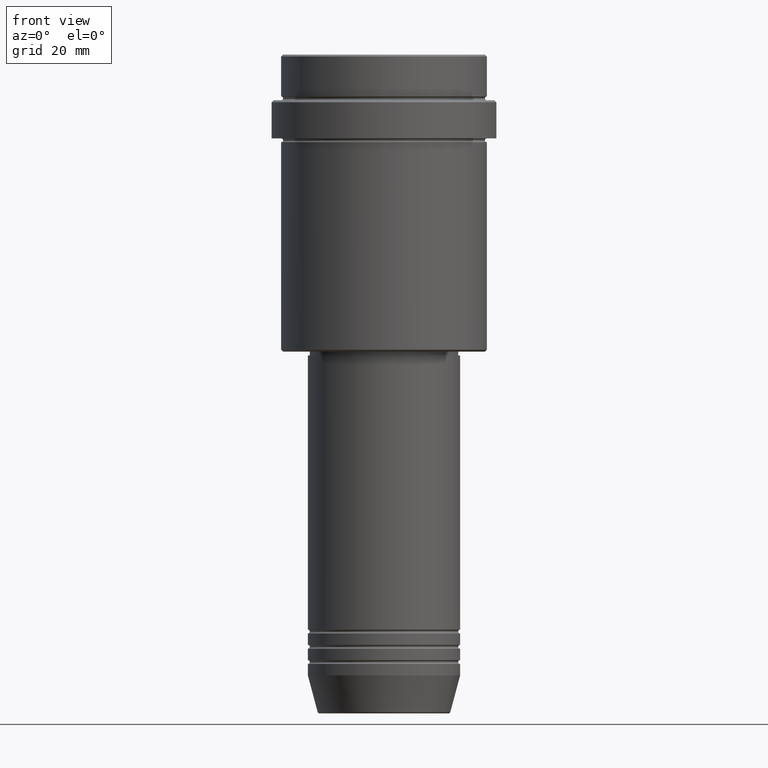
[diagram: clean part render]
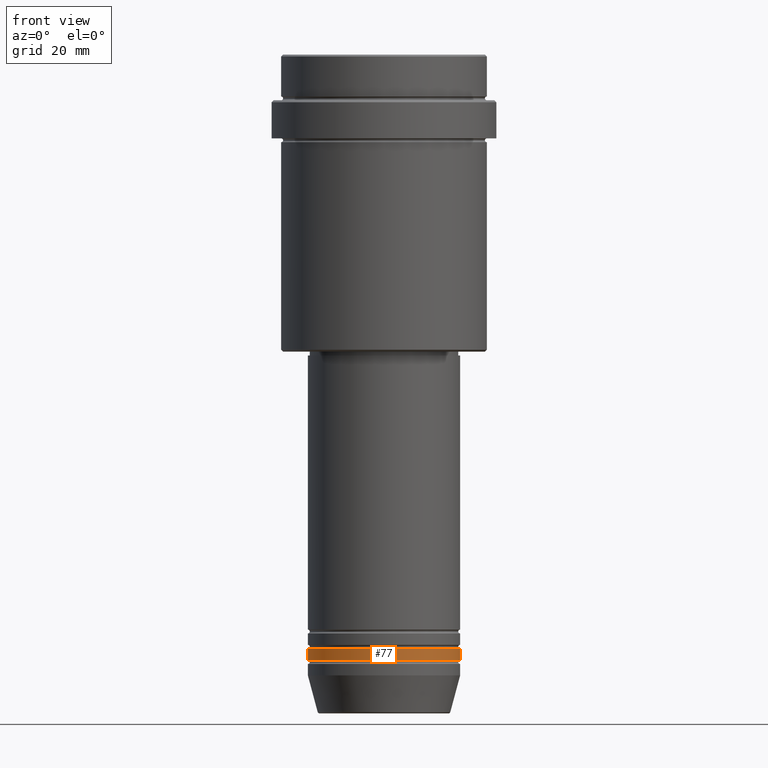
[diagram: same view with one face highlighted and labeled with its STEP entity id]
A machine part, front view. The second image highlights one B-rep face of the part: STEP entity #77.
In plain terms, the highlighted cylindrical surface (partial cylindrical patch) has radius 20 mm, axis along (-0, -0, 1).
Its self-contained STEP definition (entity closure, byte-faithful):
#3 = VECTOR ( 'NONE', #196, 1000.000000000000000 ) ;
#56 = ORIENTED_EDGE ( 'NONE', *, *, #1241, .T. ) ;
#58 = EDGE_LOOP ( 'NONE', ( #1219, #1113, #56, #1272 ) ) ;
#77 = ADVANCED_FACE ( 'NONE', ( #112 ), #544, .T. ) ;
#112 = FACE_OUTER_BOUND ( 'NONE', #58, .T. ) ;
#196 = DIRECTION ( 'NONE',  ( -0.000000000000000000, -0.000000000000000000, 1.000000000000000000 ) ) ;
#197 = CARTESIAN_POINT ( 'NONE',  ( 20.00000000000000000, 0.000000000000000000, -158.9999999999998579 ) ) ;
#230 = CARTESIAN_POINT ( 'NONE',  ( 20.00000000000000000, 0.000000000000000000, -155.9999999999998579 ) ) ;
#296 = LINE ( 'NONE', #1180, #3 ) ;
#323 = VECTOR ( 'NONE', #720, 1000.000000000000000 ) ;
#341 = CIRCLE ( 'NONE', #640, 20.00000000000000000 ) ;
#345 = EDGE_CURVE ( 'NONE', #601, #592, #1334, .T. ) ;
#452 = EDGE_CURVE ( 'NONE', #491, #634, #341, .T. ) ;
#491 = VERTEX_POINT ( 'NONE', #1294 ) ;
#501 = CARTESIAN_POINT ( 'NONE',  ( 0.000000000000000000, 0.000000000000000000, -158.9999999999998579 ) ) ;
#544 = CYLINDRICAL_SURFACE ( 'NONE', #1397, 20.00000000000000000 ) ;
#592 = VERTEX_POINT ( 'NONE', #197 ) ;
#601 = VERTEX_POINT ( 'NONE', #1186 ) ;
#606 = DIRECTION ( 'NONE',  ( -0.000000000000000000, -0.000000000000000000, 1.000000000000000000 ) ) ;
#634 = VERTEX_POINT ( 'NONE', #230 ) ;
#640 = AXIS2_PLACEMENT_3D ( 'NONE', #1406, #741, #1074 ) ;
#705 = DIRECTION ( 'NONE',  ( 1.000000000000000000, 0.000000000000000000, 0.000000000000000000 ) ) ;
#720 = DIRECTION ( 'NONE',  ( -0.000000000000000000, -0.000000000000000000, 1.000000000000000000 ) ) ;
#741 = DIRECTION ( 'NONE',  ( -0.000000000000000000, -0.000000000000000000, 1.000000000000000000 ) ) ;
#838 = EDGE_CURVE ( 'NONE', #601, #491, #296, .T. ) ;
#1011 = AXIS2_PLACEMENT_3D ( 'NONE', #501, #606, #705 ) ;
#1039 = CARTESIAN_POINT ( 'NONE',  ( 20.00000000000000000, 0.000000000000000000, 0.000000000000000000 ) ) ;
#1074 = DIRECTION ( 'NONE',  ( 1.000000000000000000, 0.000000000000000000, 0.000000000000000000 ) ) ;
#1083 = DIRECTION ( 'NONE',  ( 1.000000000000000000, 0.000000000000000000, 0.000000000000000000 ) ) ;
#1090 = CARTESIAN_POINT ( 'NONE',  ( 0.000000000000000000, 0.000000000000000000, 0.000000000000000000 ) ) ;
#1113 = ORIENTED_EDGE ( 'NONE', *, *, #345, .T. ) ;
#1180 = CARTESIAN_POINT ( 'NONE',  ( -20.00000000000000000, 2.449293598294706513E-15, 0.000000000000000000 ) ) ;
#1186 = CARTESIAN_POINT ( 'NONE',  ( -20.00000000000000000, 2.449293598294706513E-15, -158.9999999999998579 ) ) ;
#1219 = ORIENTED_EDGE ( 'NONE', *, *, #838, .F. ) ;
#1241 = EDGE_CURVE ( 'NONE', #592, #634, #1368, .T. ) ;
#1272 = ORIENTED_EDGE ( 'NONE', *, *, #452, .F. ) ;
#1290 = DIRECTION ( 'NONE',  ( -0.000000000000000000, -0.000000000000000000, 1.000000000000000000 ) ) ;
#1294 = CARTESIAN_POINT ( 'NONE',  ( -20.00000000000000000, 2.449293598294706513E-15, -155.9999999999998579 ) ) ;
#1334 = CIRCLE ( 'NONE', #1011, 20.00000000000000000 ) ;
#1368 = LINE ( 'NONE', #1039, #323 ) ;
#1397 = AXIS2_PLACEMENT_3D ( 'NONE', #1090, #1290, #1083 ) ;
#1406 = CARTESIAN_POINT ( 'NONE',  ( 0.000000000000000000, 0.000000000000000000, -155.9999999999998579 ) ) ;